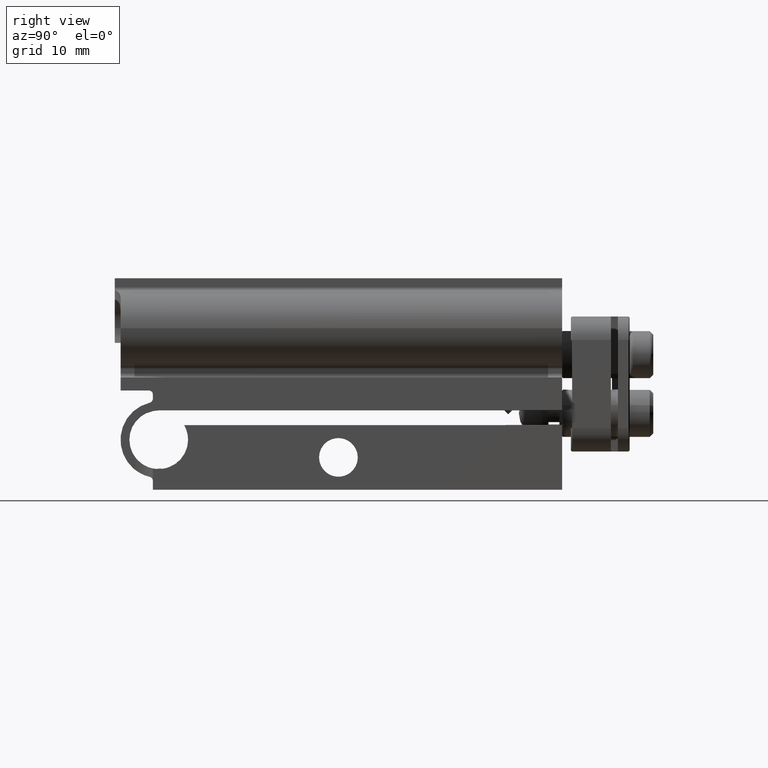
[diagram: clean part render]
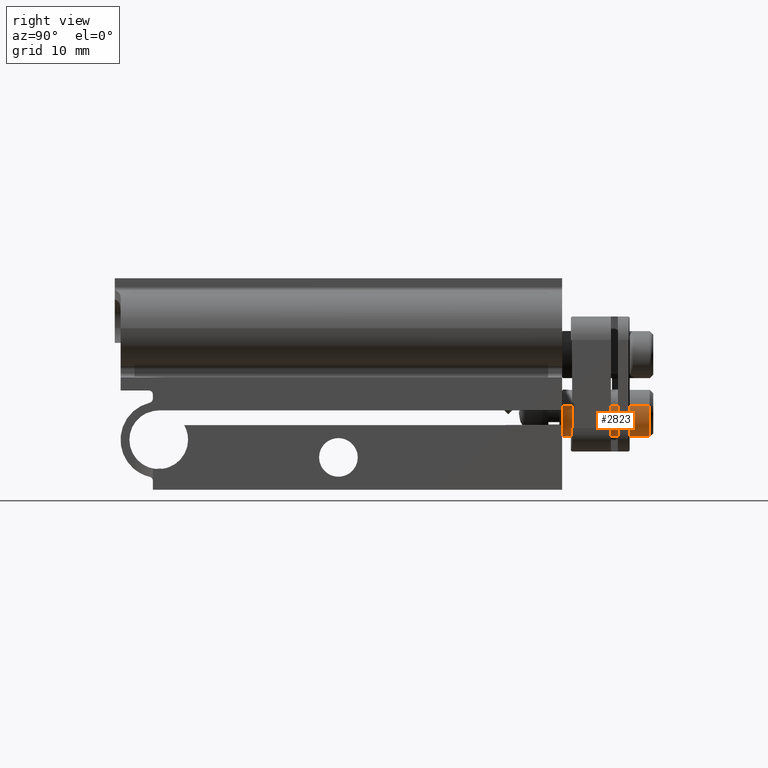
[diagram: same view with one face highlighted and labeled with its STEP entity id]
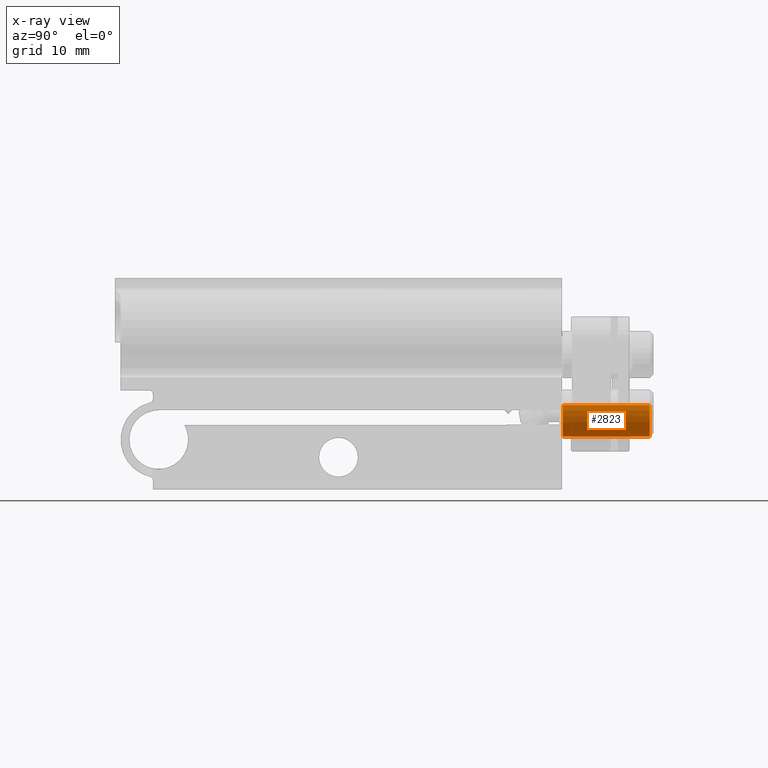
[diagram: x-ray of the same camera — body ghosted, the highlighted face saturated]
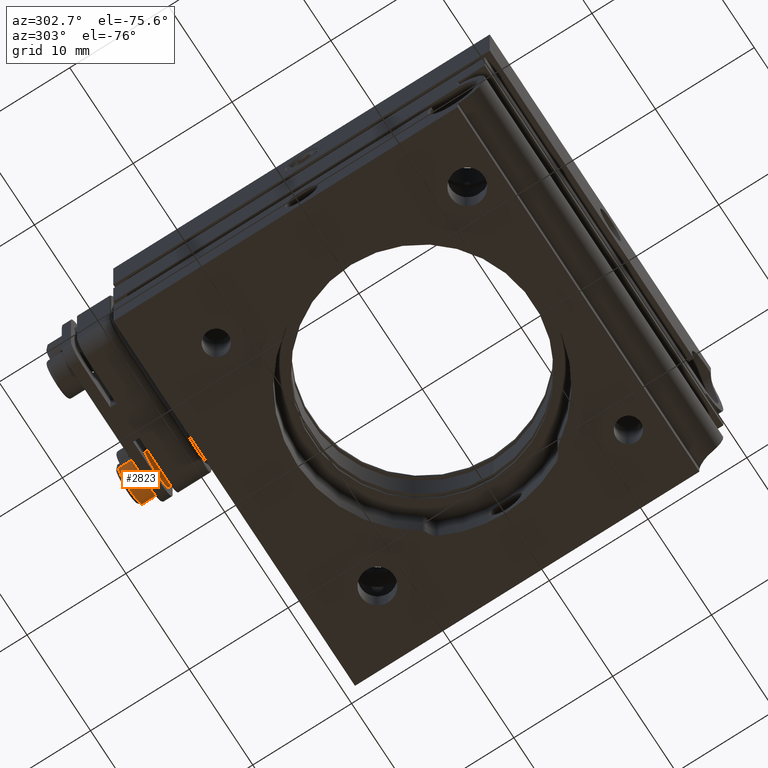
[diagram: same view with one face highlighted and labeled with its STEP entity id]
A machine part, right view. The second image highlights one B-rep face of the part: STEP entity #2823.
The next image is the same camera in x-ray: the body ghosted, the highlighted face saturated — about 0% of this face is hidden behind the body in this view.
A second angle (auxiliary view) of the same face is appended — the face is thin or edge-on in the first view.
In plain terms, the highlighted cylindrical surface (edge-blend (fillet) strip) has radius 2 mm, axis along (0, 1, 0).
Its self-contained STEP definition (entity closure, byte-faithful):
#249 = VECTOR ( 'NONE', #8566, 1000.000000000000000 ) ;
#868 = CIRCLE ( 'NONE', #10101, 2.000000000000000000 ) ;
#1155 = CARTESIAN_POINT ( 'NONE',  ( -2.925468359944793040, 19.11415149808276581, -1.802768954770430421 ) ) ;
#1272 = VECTOR ( 'NONE', #3440, 1000.000000000000000 ) ;
#1404 = EDGE_CURVE ( 'NONE', #3033, #7252, #6815, .T. ) ;
#1914 = CARTESIAN_POINT ( 'NONE',  ( -2.925468359944793040, 18.81415149808276865, -1.802768954770430421 ) ) ;
#1921 = CARTESIAN_POINT ( 'NONE',  ( -4.800000000000004263, 18.81415149808276865, -2.500000000000002665 ) ) ;
#2187 = CARTESIAN_POINT ( 'NONE',  ( -6.674531640055214154, 19.11415149808276581, -3.197231045229574686 ) ) ;
#2226 = DIRECTION ( 'NONE',  ( -0.9372658200276053897, 0.000000000000000000, -0.3486155226147861219 ) ) ;
#2581 = CYLINDRICAL_SURFACE ( 'NONE', #6481, 2.000000000000000000 ) ;
#2709 = DIRECTION ( 'NONE',  ( 0.000000000000000000, -1.000000000000000000, 0.000000000000000000 ) ) ;
#2823 = ADVANCED_FACE ( 'NONE', ( #8508 ), #2581, .T. ) ;
#2915 = AXIS2_PLACEMENT_3D ( 'NONE', #6832, #2709, #10028 ) ;
#3033 = VERTEX_POINT ( 'NONE', #2187 ) ;
#3331 = LINE ( 'NONE', #1914, #1272 ) ;
#3440 = DIRECTION ( 'NONE',  ( 0.000000000000000000, 1.000000000000000000, 0.000000000000000000 ) ) ;
#4347 = EDGE_LOOP ( 'NONE', ( #5225, #6719, #5886, #6677 ) ) ;
#4388 = CARTESIAN_POINT ( 'NONE',  ( -6.674531640055214154, 26.51415149808276794, -3.197231045229574686 ) ) ;
#4389 = EDGE_CURVE ( 'NONE', #7034, #9111, #3331, .T. ) ;
#5225 = ORIENTED_EDGE ( 'NONE', *, *, #8615, .T. ) ;
#5886 = ORIENTED_EDGE ( 'NONE', *, *, #7320, .T. ) ;
#6045 = CARTESIAN_POINT ( 'NONE',  ( -6.674531640055214154, 18.81415149808276865, -3.197231045229574686 ) ) ;
#6481 = AXIS2_PLACEMENT_3D ( 'NONE', #1921, #8557, #9282 ) ;
#6489 = CARTESIAN_POINT ( 'NONE',  ( -2.925468359944793040, 26.51415149808276794, -1.802768954770430421 ) ) ;
#6677 = ORIENTED_EDGE ( 'NONE', *, *, #4389, .F. ) ;
#6719 = ORIENTED_EDGE ( 'NONE', *, *, #1404, .T. ) ;
#6815 = LINE ( 'NONE', #6045, #249 ) ;
#6832 = CARTESIAN_POINT ( 'NONE',  ( -4.800000000000004263, 26.51415149808276794, -2.500000000000002665 ) ) ;
#7034 = VERTEX_POINT ( 'NONE', #1155 ) ;
#7252 = VERTEX_POINT ( 'NONE', #4388 ) ;
#7320 = EDGE_CURVE ( 'NONE', #7252, #9111, #8665, .T. ) ;
#8508 = FACE_OUTER_BOUND ( 'NONE', #4347, .T. ) ;
#8557 = DIRECTION ( 'NONE',  ( 0.000000000000000000, 1.000000000000000000, 0.000000000000000000 ) ) ;
#8566 = DIRECTION ( 'NONE',  ( 0.000000000000000000, 1.000000000000000000, 0.000000000000000000 ) ) ;
#8615 = EDGE_CURVE ( 'NONE', #7034, #3033, #868, .T. ) ;
#8665 = CIRCLE ( 'NONE', #2915, 2.000000000000000000 ) ;
#9111 = VERTEX_POINT ( 'NONE', #6489 ) ;
#9282 = DIRECTION ( 'NONE',  ( 0.9372658200276053897, 0.000000000000000000, 0.3486155226147861219 ) ) ;
#9703 = CARTESIAN_POINT ( 'NONE',  ( -4.800000000000004263, 19.11415149808276581, -2.500000000000002665 ) ) ;
#9920 = DIRECTION ( 'NONE',  ( -0.000000000000000000, 1.000000000000000000, -0.000000000000000000 ) ) ;
#10028 = DIRECTION ( 'NONE',  ( -0.9372658200276053897, 0.000000000000000000, -0.3486155226147861219 ) ) ;
#10101 = AXIS2_PLACEMENT_3D ( 'NONE', #9703, #9920, #2226 ) ;